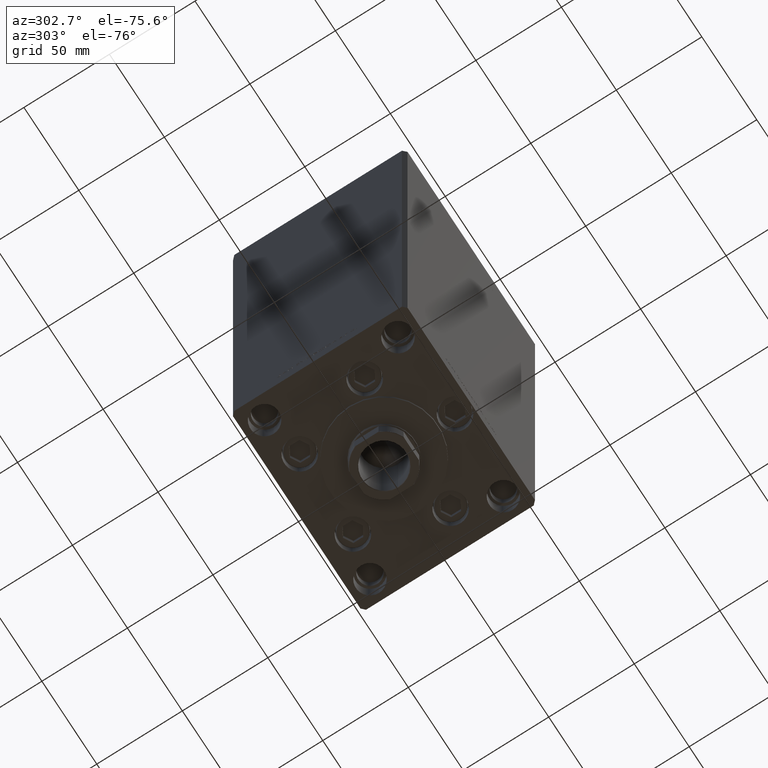
[diagram: clean part render]
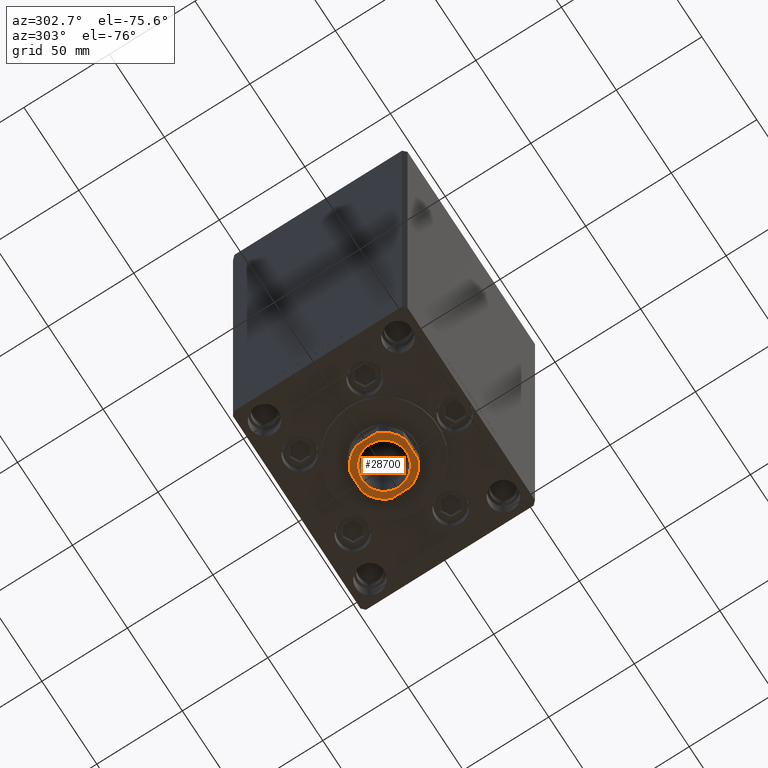
[diagram: same view with one face highlighted and labeled with its STEP entity id]
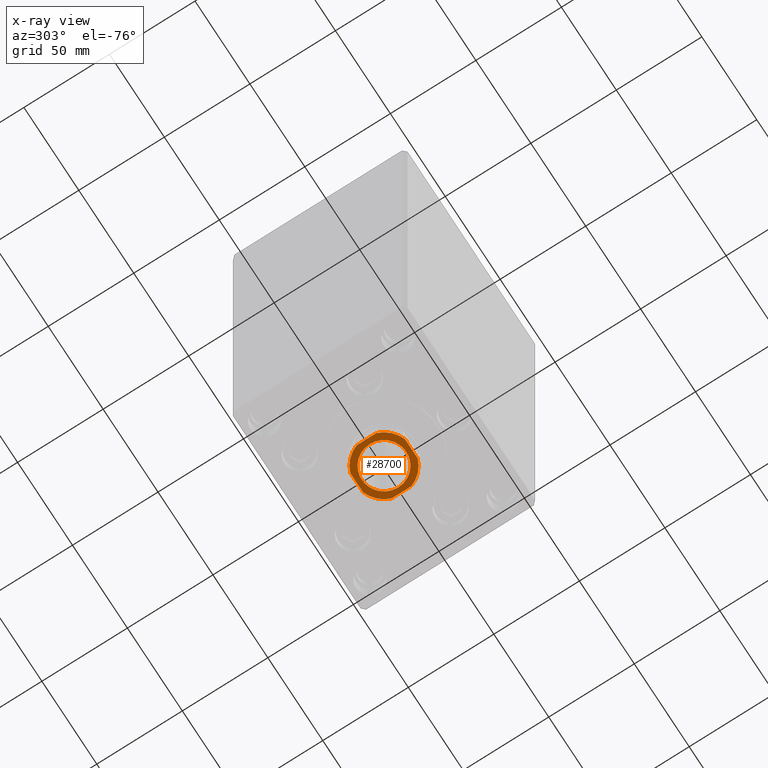
[diagram: x-ray of the same camera — body ghosted, the highlighted face saturated]
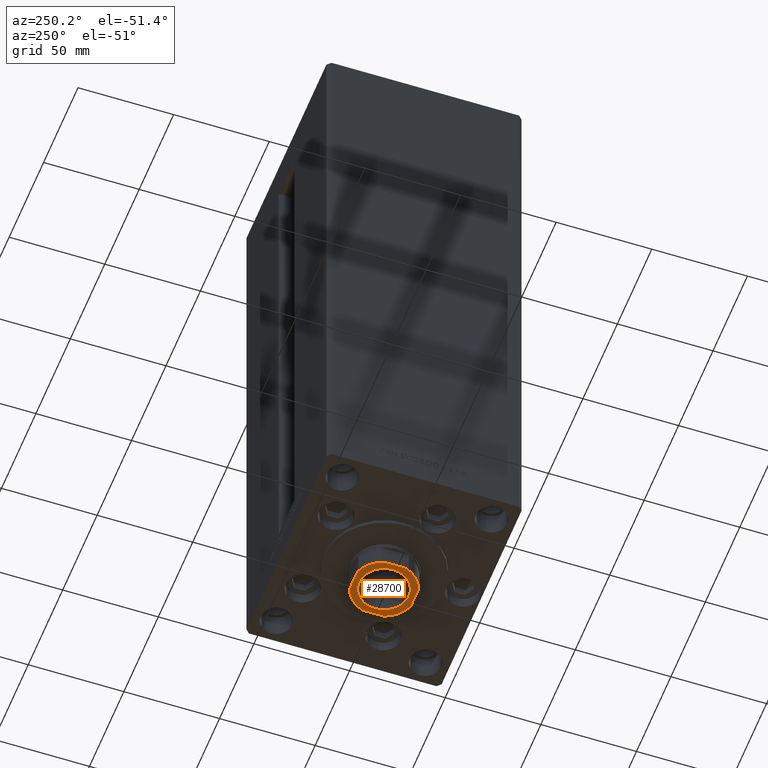
[diagram: same view with one face highlighted and labeled with its STEP entity id]
A machine part, auxiliary view. The second image highlights one B-rep face of the part: STEP entity #28700.
The next image is the same camera in x-ray: the body ghosted, the highlighted face saturated — about 0% of this face is hidden behind the body in this view.
A second angle (auxiliary view) of the same face is appended — the face is thin or edge-on in the first view.
In plain terms, the highlighted planar face has unit normal (0, 0, -1).
Its self-contained STEP definition (entity closure, byte-faithful):
#43 = VERTEX_POINT ( 'NONE', #18549 ) ;
#569 = CARTESIAN_POINT ( 'NONE',  ( 0.000000000000000000, 0.000000000000000000, 289.2500000000000000 ) ) ;
#609 = DIRECTION ( 'NONE',  ( -0.000000000000000000, 0.000000000000000000, 1.000000000000000000 ) ) ;
#799 = DIRECTION ( 'NONE',  ( 1.084202172485504434E-16, -1.000000000000000000, 0.000000000000000000 ) ) ;
#806 = AXIS2_PLACEMENT_3D ( 'NONE', #4672, #4182, #18857 ) ;
#1072 = ORIENTED_EDGE ( 'NONE', *, *, #2445, .T. ) ;
#2196 = LINE ( 'NONE', #21815, #47717 ) ;
#2445 = EDGE_CURVE ( 'NONE', #48563, #17900, #10894, .T. ) ;
#4182 = DIRECTION ( 'NONE',  ( -0.000000000000000000, 0.000000000000000000, 1.000000000000000000 ) ) ;
#4541 = CARTESIAN_POINT ( 'NONE',  ( -16.00000000000000000, 15.99999999999999645, 289.2500000000000000 ) ) ;
#4672 = CARTESIAN_POINT ( 'NONE',  ( 0.000000000000000000, 0.000000000000000000, 289.2500000000000000 ) ) ;
#5547 = CARTESIAN_POINT ( 'NONE',  ( 16.00000000000000000, 5.744562646538033945, 289.2500000000000000 ) ) ;
#5891 = PLANE ( 'NONE',  #28567 ) ;
#8251 = ORIENTED_EDGE ( 'NONE', *, *, #45837, .T. ) ;
#9854 = DIRECTION ( 'NONE',  ( 1.000000000000000000, 0.000000000000000000, 0.000000000000000000 ) ) ;
#10009 = CIRCLE ( 'NONE', #44164, 13.05000000000005933 ) ;
#10890 = VERTEX_POINT ( 'NONE', #18473 ) ;
#10894 = LINE ( 'NONE', #41461, #35900 ) ;
#11516 = ORIENTED_EDGE ( 'NONE', *, *, #31237, .T. ) ;
#11791 = VERTEX_POINT ( 'NONE', #5547 ) ;
#12768 = AXIS2_PLACEMENT_3D ( 'NONE', #29449, #48840, #33925 ) ;
#14779 = CIRCLE ( 'NONE', #19536, 17.00000000000000000 ) ;
#15744 = DIRECTION ( 'NONE',  ( -0.000000000000000000, 0.000000000000000000, 1.000000000000000000 ) ) ;
#16909 = CARTESIAN_POINT ( 'NONE',  ( -13.05000000000005933, 1.598164072887303268E-15, 289.2500000000000000 ) ) ;
#17564 = CARTESIAN_POINT ( 'NONE',  ( 0.000000000000000000, 0.000000000000000000, 289.2500000000000000 ) ) ;
#17729 = AXIS2_PLACEMENT_3D ( 'NONE', #45618, #609, #45129 ) ;
#17808 = FACE_OUTER_BOUND ( 'NONE', #18150, .T. ) ;
#17900 = VERTEX_POINT ( 'NONE', #30398 ) ;
#18150 = EDGE_LOOP ( 'NONE', ( #26185, #31064, #1072, #19084, #32773, #8251, #44350, #36627 ) ) ;
#18473 = CARTESIAN_POINT ( 'NONE',  ( 13.05000000000005933, 0.000000000000000000, 289.2500000000000000 ) ) ;
#18549 = CARTESIAN_POINT ( 'NONE',  ( -5.744562646538033945, 16.00000000000000000, 289.2500000000000000 ) ) ;
#18695 = AXIS2_PLACEMENT_3D ( 'NONE', #47925, #48170, #33015 ) ;
#18839 = EDGE_CURVE ( 'NONE', #19488, #10890, #10009, .T. ) ;
#18857 = DIRECTION ( 'NONE',  ( 1.000000000000000000, 0.000000000000000000, 0.000000000000000000 ) ) ;
#19051 = CIRCLE ( 'NONE', #806, 17.00000000000000000 ) ;
#19064 = EDGE_CURVE ( 'NONE', #37306, #48563, #14779, .T. ) ;
#19084 = ORIENTED_EDGE ( 'NONE', *, *, #41787, .T. ) ;
#19488 = VERTEX_POINT ( 'NONE', #16909 ) ;
#19536 = AXIS2_PLACEMENT_3D ( 'NONE', #569, #15744, #32616 ) ;
#21487 = CIRCLE ( 'NONE', #12768, 13.05000000000005933 ) ;
#21769 = CARTESIAN_POINT ( 'NONE',  ( -5.744562646538029504, -16.00000000000000355, 289.2500000000000000 ) ) ;
#21815 = CARTESIAN_POINT ( 'NONE',  ( -16.00000000000000000, 15.99999999999999645, 289.2500000000000000 ) ) ;
#22141 = VECTOR ( 'NONE', #33263, 1000.000000000000000 ) ;
#24483 = CARTESIAN_POINT ( 'NONE',  ( 0.000000000000000000, 0.000000000000000000, 289.2500000000000000 ) ) ;
#24713 = CARTESIAN_POINT ( 'NONE',  ( 5.744562646538033057, 16.00000000000000000, 289.2500000000000000 ) ) ;
#24721 = DIRECTION ( 'NONE',  ( 0.000000000000000000, -0.000000000000000000, -1.000000000000000000 ) ) ;
#25274 = DIRECTION ( 'NONE',  ( -0.000000000000000000, 0.000000000000000000, 1.000000000000000000 ) ) ;
#25593 = EDGE_CURVE ( 'NONE', #34856, #11791, #40705, .T. ) ;
#26185 = ORIENTED_EDGE ( 'NONE', *, *, #48986, .T. ) ;
#28064 = CIRCLE ( 'NONE', #17729, 17.00000000000000000 ) ;
#28567 = AXIS2_PLACEMENT_3D ( 'NONE', #17564, #25274, #9854 ) ;
#28690 = DIRECTION ( 'NONE',  ( 1.000000000000000000, 0.000000000000000000, 0.000000000000000000 ) ) ;
#28700 = ADVANCED_FACE ( 'NONE', ( #43912, #17808 ), #5891, .T. ) ;
#29435 = EDGE_CURVE ( 'NONE', #43, #34523, #19051, .T. ) ;
#29449 = CARTESIAN_POINT ( 'NONE',  ( 0.000000000000000000, 0.000000000000000000, 289.2500000000000000 ) ) ;
#30398 = CARTESIAN_POINT ( 'NONE',  ( 5.744562646538024175, -16.00000000000000355, 289.2500000000000000 ) ) ;
#31064 = ORIENTED_EDGE ( 'NONE', *, *, #19064, .T. ) ;
#31237 = EDGE_CURVE ( 'NONE', #10890, #19488, #21487, .T. ) ;
#31757 = EDGE_CURVE ( 'NONE', #48668, #43, #2196, .T. ) ;
#32616 = DIRECTION ( 'NONE',  ( 1.000000000000000000, 0.000000000000000000, 0.000000000000000000 ) ) ;
#32773 = ORIENTED_EDGE ( 'NONE', *, *, #25593, .T. ) ;
#33015 = DIRECTION ( 'NONE',  ( 1.000000000000000000, 0.000000000000000000, 0.000000000000000000 ) ) ;
#33263 = DIRECTION ( 'NONE',  ( -1.084202172485504434E-16, 1.000000000000000000, -0.000000000000000000 ) ) ;
#33925 = DIRECTION ( 'NONE',  ( 1.000000000000000000, 0.000000000000000000, 0.000000000000000000 ) ) ;
#34523 = VERTEX_POINT ( 'NONE', #38055 ) ;
#34731 = ORIENTED_EDGE ( 'NONE', *, *, #18839, .T. ) ;
#34856 = VERTEX_POINT ( 'NONE', #37754 ) ;
#35842 = LINE ( 'NONE', #4541, #39397 ) ;
#35900 = VECTOR ( 'NONE', #41951, 1000.000000000000000 ) ;
#36627 = ORIENTED_EDGE ( 'NONE', *, *, #29435, .T. ) ;
#36991 = CARTESIAN_POINT ( 'NONE',  ( 16.00000000000000000, 16.00000000000000000, 289.2500000000000000 ) ) ;
#37306 = VERTEX_POINT ( 'NONE', #47045 ) ;
#37635 = CIRCLE ( 'NONE', #18695, 17.00000000000000000 ) ;
#37754 = CARTESIAN_POINT ( 'NONE',  ( 16.00000000000000355, -5.744562646538033057, 289.2500000000000000 ) ) ;
#38055 = CARTESIAN_POINT ( 'NONE',  ( -16.00000000000000000, 5.744562646538029504, 289.2500000000000000 ) ) ;
#39397 = VECTOR ( 'NONE', #799, 1000.000000000000000 ) ;
#40705 = LINE ( 'NONE', #36991, #22141 ) ;
#41461 = CARTESIAN_POINT ( 'NONE',  ( -15.99999999999999645, -16.00000000000000355, 289.2500000000000000 ) ) ;
#41787 = EDGE_CURVE ( 'NONE', #17900, #34856, #28064, .T. ) ;
#41951 = DIRECTION ( 'NONE',  ( 1.000000000000000000, 1.084202172485504434E-16, 0.000000000000000000 ) ) ;
#43702 = DIRECTION ( 'NONE',  ( -1.000000000000000000, -1.084202172485504434E-16, -0.000000000000000000 ) ) ;
#43912 = FACE_BOUND ( 'NONE', #46709, .T. ) ;
#44164 = AXIS2_PLACEMENT_3D ( 'NONE', #24483, #24721, #28690 ) ;
#44350 = ORIENTED_EDGE ( 'NONE', *, *, #31757, .T. ) ;
#45129 = DIRECTION ( 'NONE',  ( 1.000000000000000000, 0.000000000000000000, 0.000000000000000000 ) ) ;
#45618 = CARTESIAN_POINT ( 'NONE',  ( 0.000000000000000000, 0.000000000000000000, 289.2500000000000000 ) ) ;
#45837 = EDGE_CURVE ( 'NONE', #11791, #48668, #37635, .T. ) ;
#46709 = EDGE_LOOP ( 'NONE', ( #11516, #34731 ) ) ;
#47045 = CARTESIAN_POINT ( 'NONE',  ( -16.00000000000000000, -5.744562646538033945, 289.2500000000000000 ) ) ;
#47717 = VECTOR ( 'NONE', #43702, 1000.000000000000000 ) ;
#47925 = CARTESIAN_POINT ( 'NONE',  ( 0.000000000000000000, 0.000000000000000000, 289.2500000000000000 ) ) ;
#48170 = DIRECTION ( 'NONE',  ( -0.000000000000000000, 0.000000000000000000, 1.000000000000000000 ) ) ;
#48563 = VERTEX_POINT ( 'NONE', #21769 ) ;
#48668 = VERTEX_POINT ( 'NONE', #24713 ) ;
#48840 = DIRECTION ( 'NONE',  ( 0.000000000000000000, -0.000000000000000000, -1.000000000000000000 ) ) ;
#48986 = EDGE_CURVE ( 'NONE', #34523, #37306, #35842, .T. ) ;